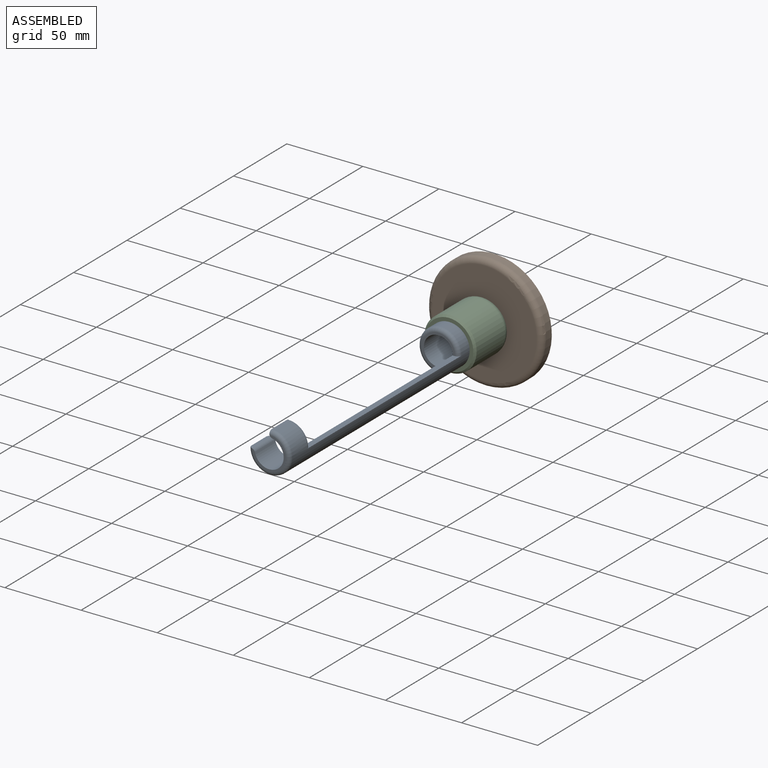
[diagram: assembled view]
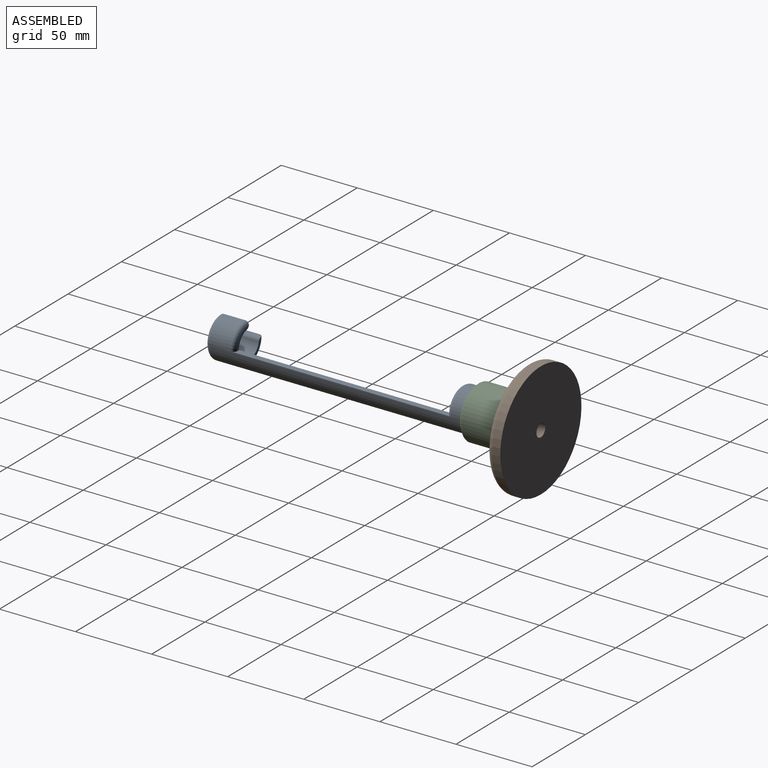
[diagram: assembled view, second angle]
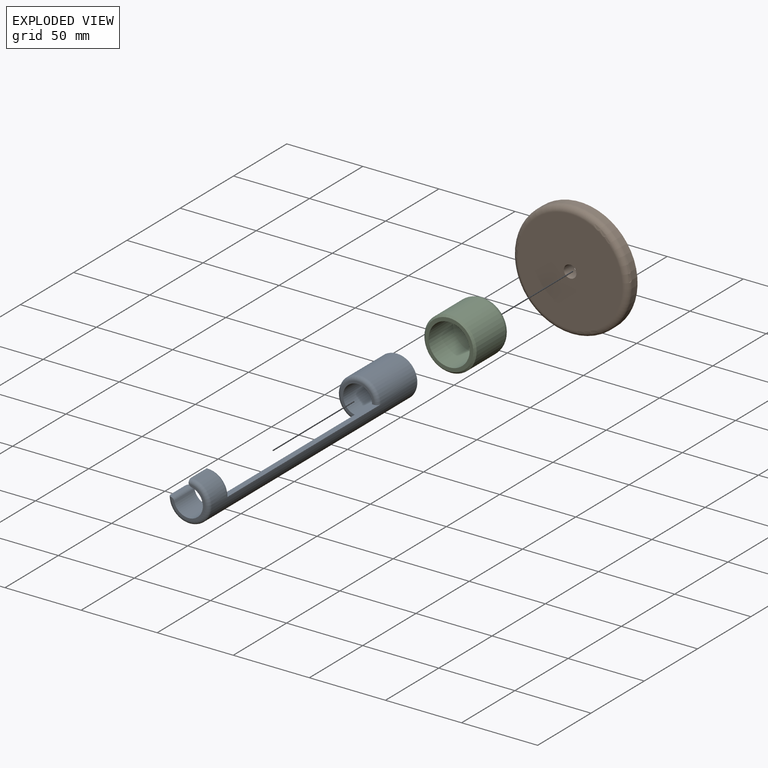
[diagram: exploded view]
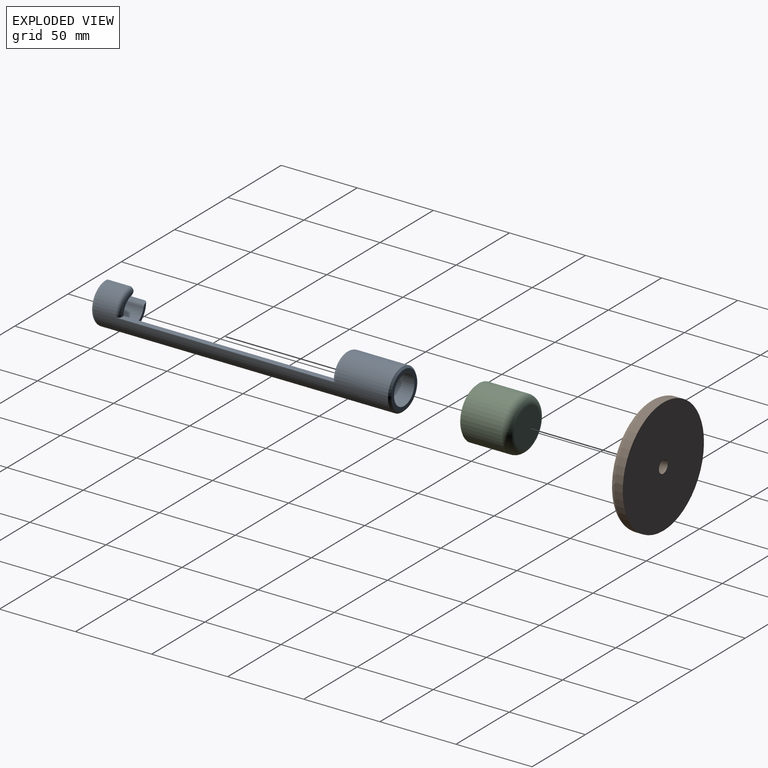
[diagram: exploded view, second angle]
ASSEMBLY  parts=3 mates=2
PART A: 20 faces, bbox 29.2x196.9x29.2 mm
  f0: cylinder r=9.53mm len=19.05mm, axis (0,1,0), area 246.5mm2, adj f1,f10,f11,f14
  f1: cylinder r=9.53mm len=196.85mm, axis (0,1,0), area 4897.8mm2, adj f0,f4,f5,f6,f7,f10,f13,f15
  f2: cylinder r=13.49mm len=193.04mm, axis (0,1,0), area 6568.2mm2, adj f3,f5,f6,f9,f12,f16,f18,f19
  f3: cylinder r=13.49mm len=13.97mm, axis (0,1,0), area 296.1mm2, adj f2,f8,f17,f18
  f4: plane 24.45x24.45mm, normal (0,1,0), area 184.4mm2, adj f1,f12
  f5: plane 144.78x3.97mm, normal (-1,0,0), area 557.2mm2, adj f1,f2,f11,f15,f17,f19
  f6: plane 144.79x3.98mm, normal (-0.01,0,1), area 557.2mm2, adj f1,f2,f7,f15,f16,f19
  f7: plane 10.98x10.79mm, normal (0,1,0), area 22mm2, adj f1,f6,f13,f16
  f8: plane 18.76x1.7mm, normal (0,0,1), area 29.7mm2, adj f3,f14,f17,f18
  f9: plane 18.81x1.76mm, normal (-1,0,-0.02), area 30.5mm2, adj f2,f13,f16,f18
  f10: plane 21.91x21.91mm, normal (0,-1,0), area 67mm2, adj f0,f1,f13,f14,f18
  f11: plane 10.95x10.81mm, normal (0,1,0), area 22mm2, adj f0,f5,f14,f17
  f12: cone r=13.49mm half-angle=45deg, axis (0,-1,0), area 145.1mm2, adj f2,f4
  f13: cylinder r=2.54mm len=19.05mm, axis (0,1,0), area 64.8mm2, adj f1,f7,f9,f10,f16,f18
  f14: cylinder r=2.54mm len=19.05mm, axis (0,1,0), area 65.7mm2, adj f0,f8,f10,f11,f17,f18
  f15: plane 21.91x21.91mm, normal (0,-1,0), area 69mm2, adj f1,f5,f6,f19
  f16: torus R=10.95mm, axis (0,-1,0), area 78.7mm2, adj f2,f6,f7,f9,f13
  f17: torus R=10.95mm, axis (0,-1,0), area 78.7mm2, adj f3,f5,f8,f11,f14
  f18: torus R=10.95mm, axis (0,-1,0), area 236.2mm2, adj f2,f3,f8,f9,f10,f13,f14
  f19: torus R=10.95mm, axis (0,-1,0), area 236.4mm2, adj f2,f5,f6,f15
PART B: 5 faces, bbox 82.5x8.9x82.5 mm
  f0: cylinder r=38.1mm len=76.2mm, axis (0,1,0), area 1216.1mm2, adj f2,f3
  f1: plane 68.58x68.58mm, normal (0,-1,0), area 3640.4mm2, adj f3,f4
  f2: plane 76.2x76.2mm, normal (0,1,0), area 4506.8mm2, adj f0,f4
  f3: torus R=34.29mm, axis (0,-1,0), area 1380.6mm2, adj f0,f1
  f4: cylinder r=4.13mm len=8.89mm, axis (0,-1,0), area 230.6mm2, adj f1,f2
PART C: 7 faces, bbox 37.1x33x37.1 mm
  f0: cylinder r=17.14mm len=34.29mm, axis (0,1,0), area 2873mm2, adj f5,f6
  f1: plane 24.13x24.13mm, normal (0,-1,0), area 457.3mm2, adj f5
  f2: plane 31.75x31.75mm, normal (0,1,0), area 219.2mm2, adj f4,f6
  f3: cone r=0mm half-angle=59deg, axis (0,1,0), area 668mm2, adj f4
  f4: cylinder r=13.5mm len=27mm, axis (0,1,0), area 1939.1mm2, adj f2,f3
  f5: torus R=12.06mm, axis (0,-1,0), area 767.1mm2, adj f0,f1
  f6: cone r=17.14mm half-angle=45deg, axis (0,-1,0), area 186.3mm2, adj f0,f2
PLACE A t=(-80.45,-104.56,-66.22)mm
PLACE B t=(-80.45,-90.59,-66.22)mm
PLACE C rot(axis=(1,0,0),180deg) t=(-80.45,-132.5,-66.22)mm
MATE cylindrical C.f0 <-> A.f0  axis (0,-1,0) through (-80.45,-104.56,-66.22)mm
MATE cylindrical C.f0 <-> B.f0  axis (0,1,0) through (-80.45,-99.48,-66.22)mm
